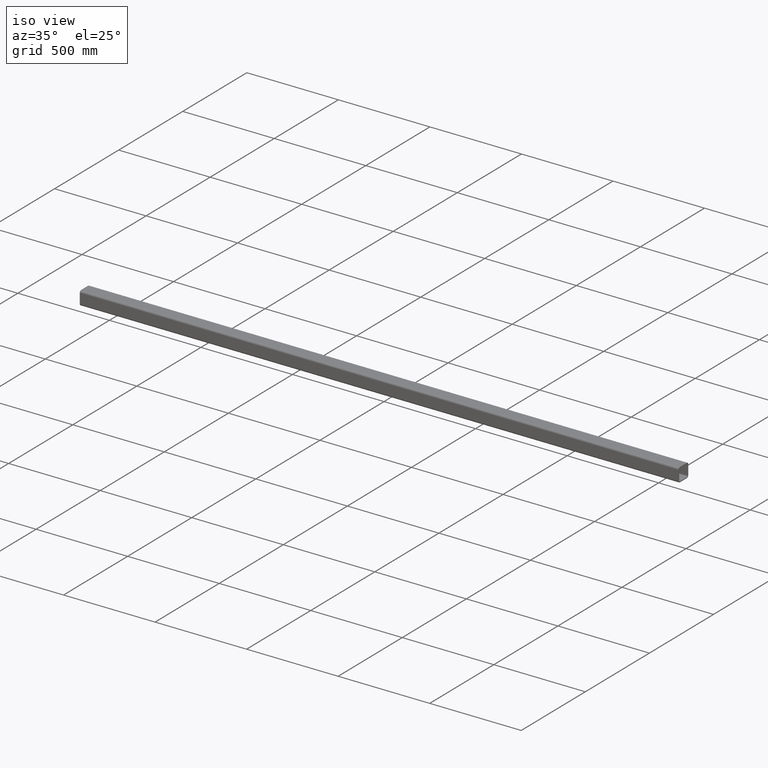
[diagram: clean part render]
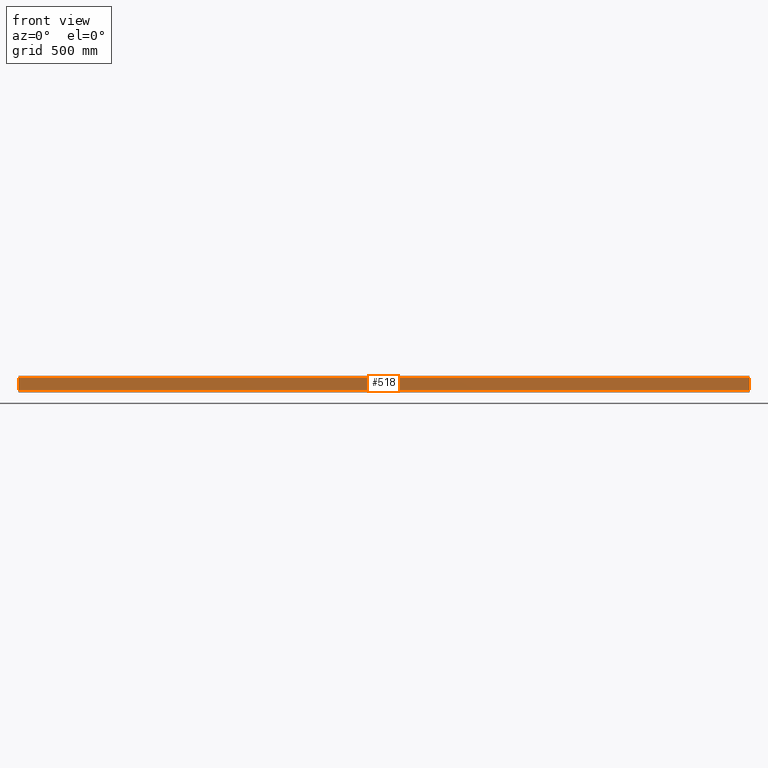
[diagram: tour spotlight — one face highlighted and labeled with its STEP entity id]
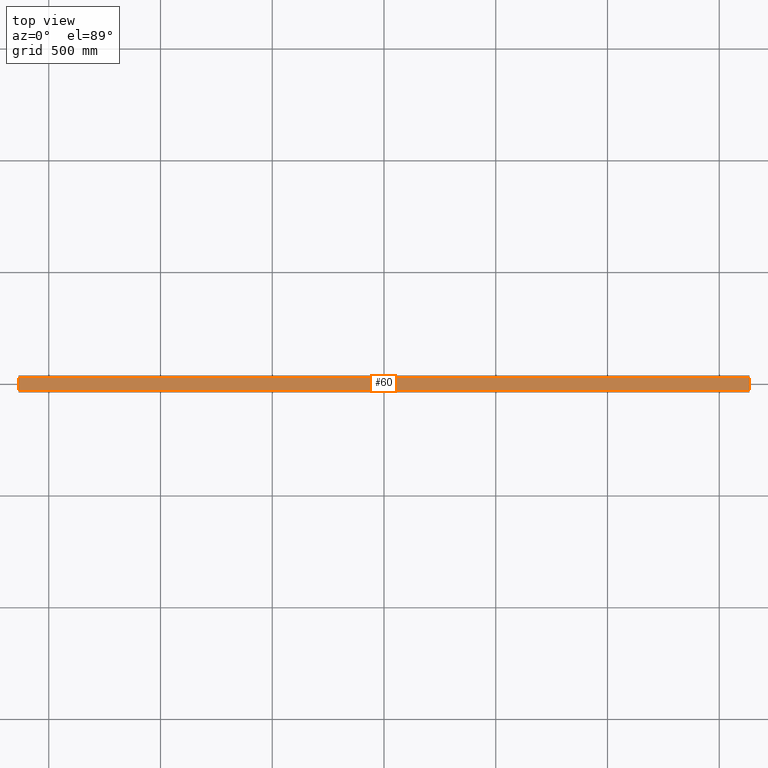
[diagram: tour spotlight — one face highlighted and labeled with its STEP entity id]
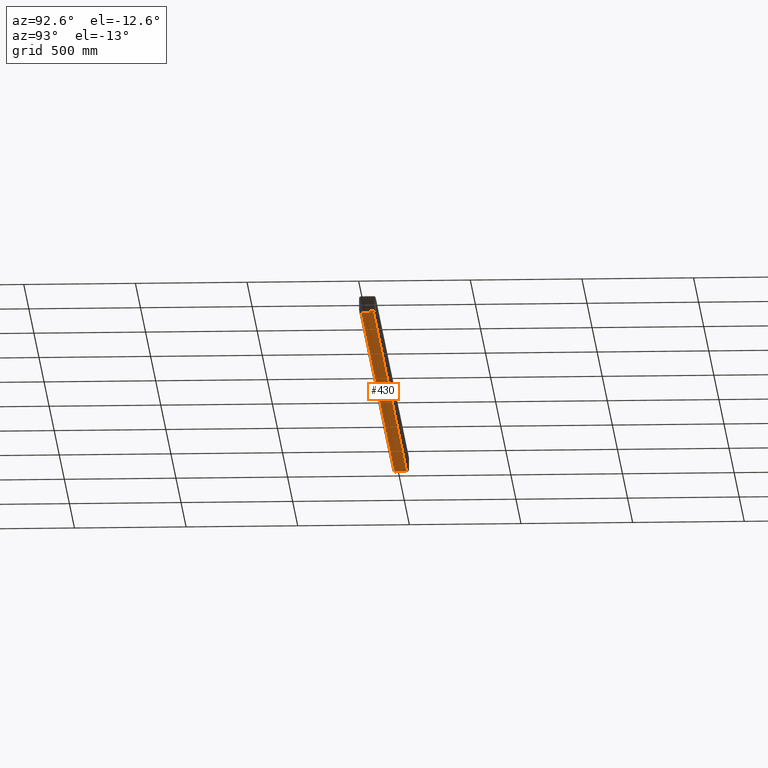
[diagram: tour spotlight — one face highlighted and labeled with its STEP entity id]
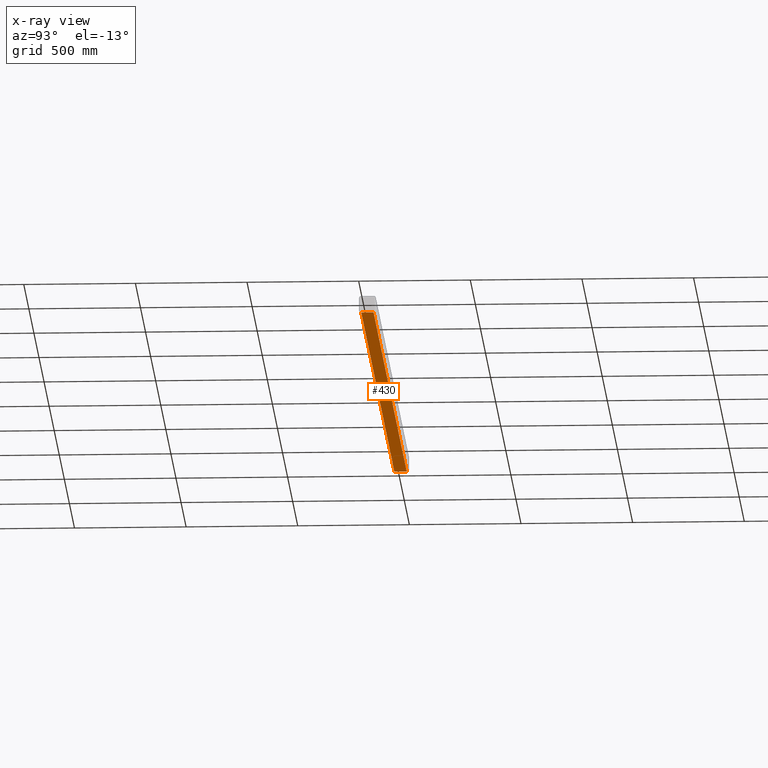
[diagram: x-ray of the same camera — body ghosted, this tour face saturated]
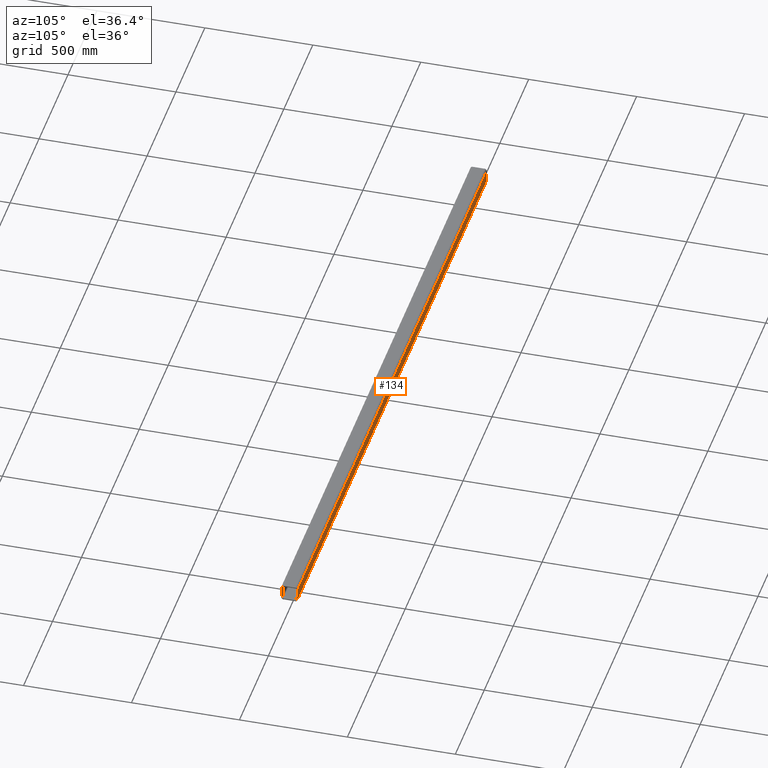
[diagram: tour spotlight — one face highlighted and labeled with its STEP entity id]
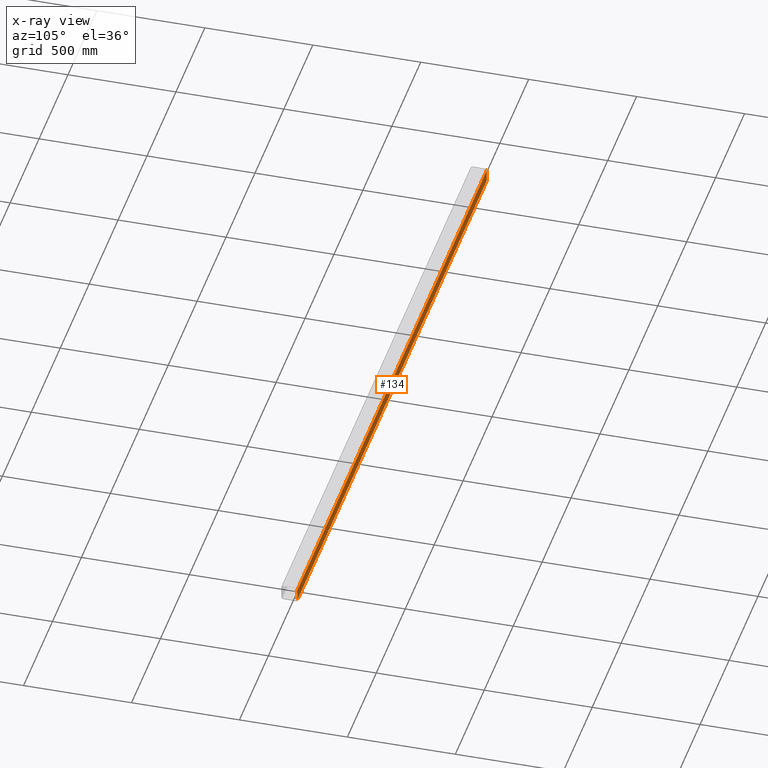
[diagram: x-ray of the same camera — body ghosted, this tour face saturated]
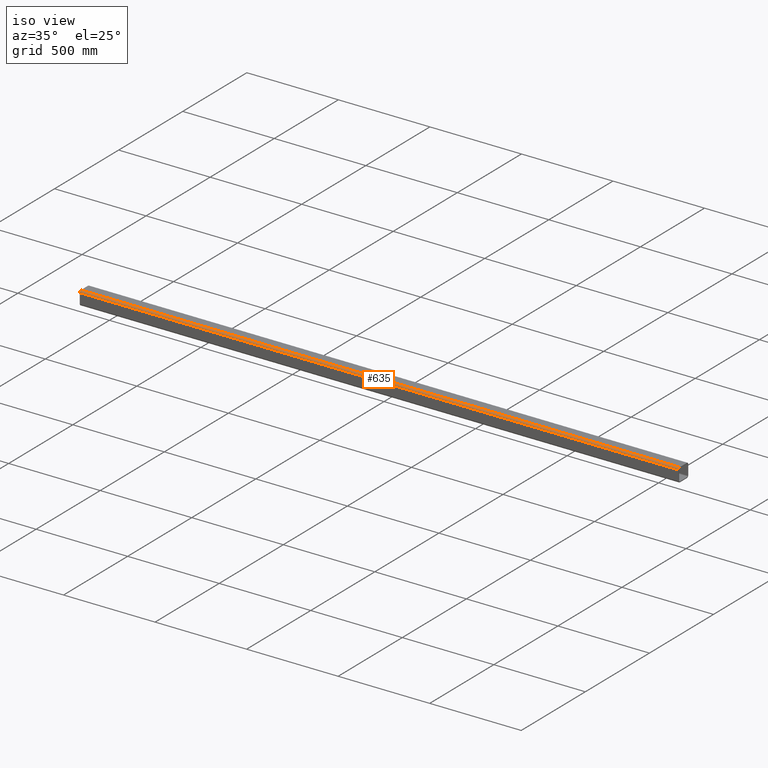
[diagram: tour spotlight — one face highlighted and labeled with its STEP entity id]
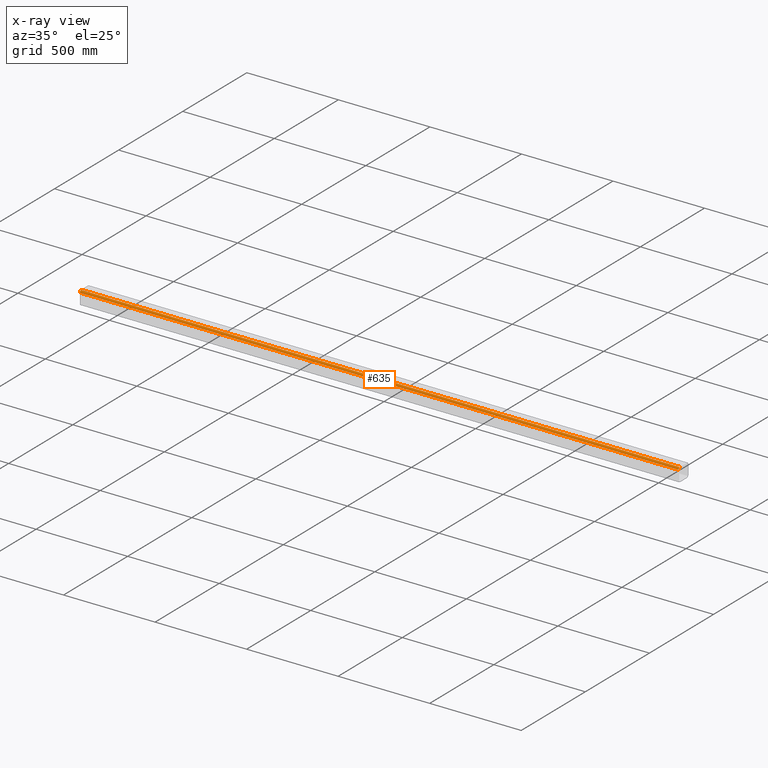
[diagram: x-ray of the same camera — body ghosted, this tour face saturated]
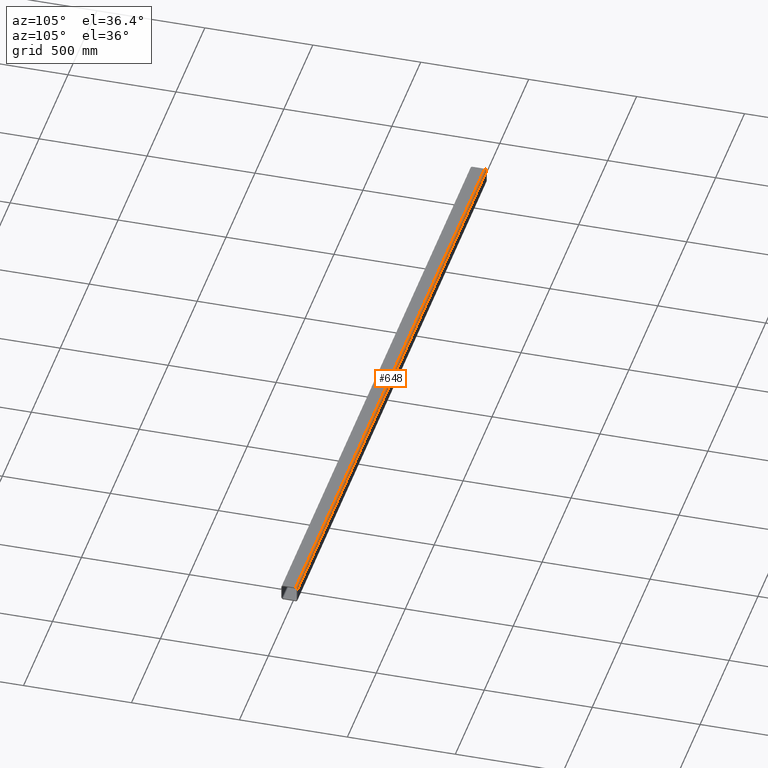
[diagram: tour spotlight — one face highlighted and labeled with its STEP entity id]
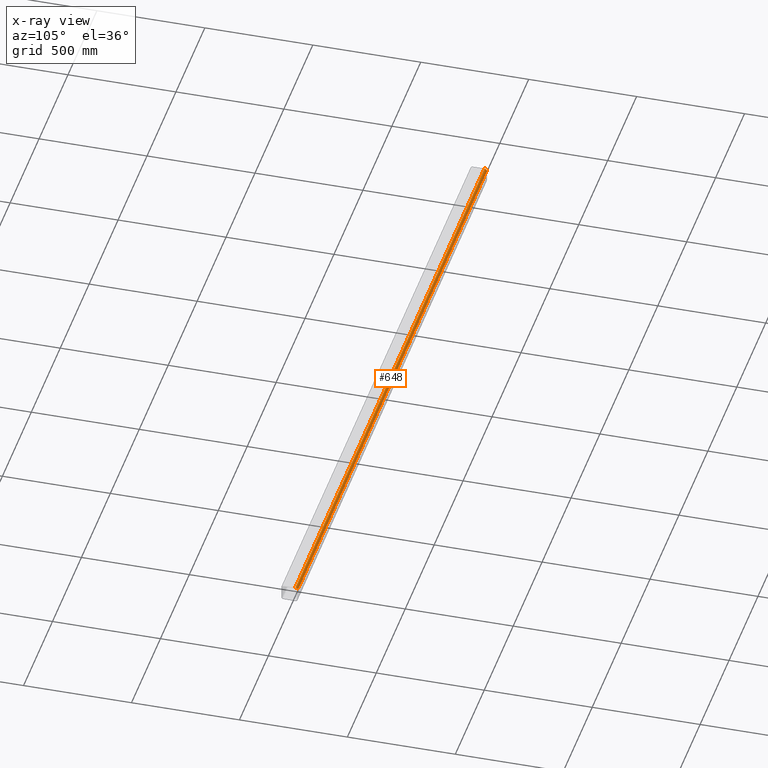
[diagram: x-ray of the same camera — body ghosted, this tour face saturated]
A machine part: a face-by-face anatomy tour. The part has 18 B-rep faces; the first image is the clean iso view, then the 6 largest visible faces are spotlighted one at a time (largest first), each with its STEP entity span.

Face 1 — front view, entity #518. In plain terms, the highlighted planar face has unit normal (-0, 1, 0).
Definition (entity closure, byte-faithful):
#1 = LINE ( 'NONE', #68, #85 ) ;
#54 = EDGE_CURVE ( 'NONE', #269, #253, #208, .T. ) ;
#62 = AXIS2_PLACEMENT_3D ( 'NONE', #446, #652, #112 ) ;
#64 = FACE_OUTER_BOUND ( 'NONE', #340, .T. ) ;
#68 = CARTESIAN_POINT ( 'NONE',  ( -1635.500000000000000, -37.50000000000039790, 27.49999999999987566 ) ) ;
#77 = ORIENTED_EDGE ( 'NONE', *, *, #595, .T. ) ;
#85 = VECTOR ( 'NONE', #566, 1000.000000000000000 ) ;
#102 = VECTOR ( 'NONE', #585, 1000.000000000000000 ) ;
#106 = VERTEX_POINT ( 'NONE', #513 ) ;
#112 = DIRECTION ( 'NONE',  ( -1.000000000000000000, -3.061616997868382648E-16, 0.000000000000000000 ) ) ;
#121 = CARTESIAN_POINT ( 'NONE',  ( -1635.500000000000000, -37.50000000000039790, -27.50000000000011724 ) ) ;
#154 = DIRECTION ( 'NONE',  ( 0.000000000000000000, 0.000000000000000000, 1.000000000000000000 ) ) ;
#157 = CARTESIAN_POINT ( 'NONE',  ( 1635.500000000000000, -37.49999999999940314, -27.50000000000011724 ) ) ;
#160 = CARTESIAN_POINT ( 'NONE',  ( -1635.500000000000000, -37.50000000000039790, -27.50000000000011724 ) ) ;
#166 = LINE ( 'NONE', #121, #102 ) ;
#208 = LINE ( 'NONE', #160, #438 ) ;
#253 = VERTEX_POINT ( 'NONE', #469 ) ;
#269 = VERTEX_POINT ( 'NONE', #621 ) ;
#320 = EDGE_CURVE ( 'NONE', #269, #552, #166, .T. ) ;
#340 = EDGE_LOOP ( 'NONE', ( #77, #351, #470, #514 ) ) ;
#351 = ORIENTED_EDGE ( 'NONE', *, *, #574, .F. ) ;
#356 = LINE ( 'NONE', #460, #584 ) ;
#438 = VECTOR ( 'NONE', #608, 1000.000000000000000 ) ;
#446 = CARTESIAN_POINT ( 'NONE',  ( -1635.500000000000000, -37.50000000000039790, -27.50000000000011724 ) ) ;
#448 = PLANE ( 'NONE',  #62 ) ;
#460 = CARTESIAN_POINT ( 'NONE',  ( 1635.500000000000000, -37.49999999999940314, -27.50000000000011724 ) ) ;
#469 = CARTESIAN_POINT ( 'NONE',  ( -1635.500000000000000, -37.50000000000039790, 27.49999999999987566 ) ) ;
#470 = ORIENTED_EDGE ( 'NONE', *, *, #54, .F. ) ;
#513 = CARTESIAN_POINT ( 'NONE',  ( 1635.500000000000000, -37.49999999999940314, 27.49999999999987566 ) ) ;
#514 = ORIENTED_EDGE ( 'NONE', *, *, #320, .T. ) ;
#518 = ADVANCED_FACE ( 'NONE', ( #64 ), #448, .F. ) ;
#552 = VERTEX_POINT ( 'NONE', #157 ) ;
#566 = DIRECTION ( 'NONE',  ( 1.000000000000000000, 3.061616997868382648E-16, -0.000000000000000000 ) ) ;
#574 = EDGE_CURVE ( 'NONE', #253, #106, #1, .T. ) ;
#584 = VECTOR ( 'NONE', #154, 1000.000000000000000 ) ;
#585 = DIRECTION ( 'NONE',  ( 1.000000000000000000, 3.061616997868382648E-16, -0.000000000000000000 ) ) ;
#595 = EDGE_CURVE ( 'NONE', #552, #106, #356, .T. ) ;
#608 = DIRECTION ( 'NONE',  ( 0.000000000000000000, 0.000000000000000000, 1.000000000000000000 ) ) ;
#621 = CARTESIAN_POINT ( 'NONE',  ( -1635.500000000000000, -37.50000000000039790, -27.50000000000011724 ) ) ;
#652 = DIRECTION ( 'NONE',  ( -3.061616997868382648E-16, 1.000000000000000000, 0.000000000000000000 ) ) ;

Face 2 — top view, entity #60. In plain terms, the highlighted planar face has unit normal (0, -0, -1).
Definition (entity closure, byte-faithful):
#12 = DIRECTION ( 'NONE',  ( -0.000000000000000000, 1.000000000000000000, -1.261617073437677506E-16 ) ) ;
#31 = ORIENTED_EDGE ( 'NONE', *, *, #449, .T. ) ;
#60 = ADVANCED_FACE ( 'NONE', ( #559 ), #158, .F. ) ;
#67 = VERTEX_POINT ( 'NONE', #165 ) ;
#80 = VERTEX_POINT ( 'NONE', #567 ) ;
#88 = EDGE_LOOP ( 'NONE', ( #31, #290, #186, #277 ) ) ;
#97 = DIRECTION ( 'NONE',  ( 1.000000000000000000, 3.061616997868382648E-16, -0.000000000000000000 ) ) ;
#128 = EDGE_CURVE ( 'NONE', #80, #348, #252, .T. ) ;
#131 = AXIS2_PLACEMENT_3D ( 'NONE', #611, #353, #396 ) ;
#158 = PLANE ( 'NONE',  #131 ) ;
#163 = LINE ( 'NONE', #352, #464 ) ;
#165 = CARTESIAN_POINT ( 'NONE',  ( 1635.500000000000000, 27.50000000000062528, 37.49999999999987921 ) ) ;
#186 = ORIENTED_EDGE ( 'NONE', *, *, #627, .F. ) ;
#252 = LINE ( 'NONE', #260, #419 ) ;
#260 = CARTESIAN_POINT ( 'NONE',  ( -1635.500000000000000, -27.50000000000039080, 37.49999999999987921 ) ) ;
#277 = ORIENTED_EDGE ( 'NONE', *, *, #128, .T. ) ;
#290 = ORIENTED_EDGE ( 'NONE', *, *, #393, .F. ) ;
#334 = CARTESIAN_POINT ( 'NONE',  ( -1635.500000000000000, 27.49999999999962341, 37.49999999999987921 ) ) ;
#348 = VERTEX_POINT ( 'NONE', #535 ) ;
#352 = CARTESIAN_POINT ( 'NONE',  ( -1635.500000000000000, 27.49999999999962341, 37.49999999999987921 ) ) ;
#353 = DIRECTION ( 'NONE',  ( 3.862588276837757567E-32, -1.261617073437677506E-16, -1.000000000000000000 ) ) ;
#366 = VECTOR ( 'NONE', #598, 1000.000000000000000 ) ;
#389 = LINE ( 'NONE', #541, #593 ) ;
#393 = EDGE_CURVE ( 'NONE', #458, #67, #389, .T. ) ;
#396 = DIRECTION ( 'NONE',  ( 0.000000000000000000, 1.000000000000000000, -1.261617073437677506E-16 ) ) ;
#419 = VECTOR ( 'NONE', #461, 1000.000000000000000 ) ;
#449 = EDGE_CURVE ( 'NONE', #348, #67, #483, .T. ) ;
#458 = VERTEX_POINT ( 'NONE', #334 ) ;
#461 = DIRECTION ( 'NONE',  ( 1.000000000000000000, 3.061616997868382648E-16, -0.000000000000000000 ) ) ;
#464 = VECTOR ( 'NONE', #12, 1000.000000000000000 ) ;
#483 = LINE ( 'NONE', #485, #366 ) ;
#485 = CARTESIAN_POINT ( 'NONE',  ( 1635.500000000000000, 27.50000000000062528, 37.49999999999987921 ) ) ;
#535 = CARTESIAN_POINT ( 'NONE',  ( 1635.500000000000000, -27.49999999999938893, 37.49999999999987921 ) ) ;
#541 = CARTESIAN_POINT ( 'NONE',  ( -1635.500000000000000, 27.49999999999962341, 37.49999999999987921 ) ) ;
#559 = FACE_OUTER_BOUND ( 'NONE', #88, .T. ) ;
#567 = CARTESIAN_POINT ( 'NONE',  ( -1635.500000000000000, -27.50000000000039080, 37.49999999999987921 ) ) ;
#593 = VECTOR ( 'NONE', #97, 1000.000000000000000 ) ;
#598 = DIRECTION ( 'NONE',  ( -0.000000000000000000, 1.000000000000000000, -1.261617073437677506E-16 ) ) ;
#611 = CARTESIAN_POINT ( 'NONE',  ( -1635.500000000000000, 27.49999999999962341, 37.49999999999987921 ) ) ;
#627 = EDGE_CURVE ( 'NONE', #80, #458, #163, .T. ) ;

Face 3 — auxiliary view, entity #430. An x-ray twin of the same camera follows (body ghosted, this face saturated) — the face is partly hidden behind the body. In plain terms, the highlighted planar face has unit normal (-0, 0, 1).
Definition (entity closure, byte-faithful):
#24 = VERTEX_POINT ( 'NONE', #242 ) ;
#25 = VECTOR ( 'NONE', #191, 1000.000000000000000 ) ;
#27 = CARTESIAN_POINT ( 'NONE',  ( 1635.500000000000000, 27.50000000000062528, -37.50000000000012790 ) ) ;
#39 = CARTESIAN_POINT ( 'NONE',  ( -1635.500000000000000, 27.49999999999962341, -37.50000000000012790 ) ) ;
#46 = CARTESIAN_POINT ( 'NONE',  ( -1635.500000000000000, 27.49999999999962341, -37.50000000000012790 ) ) ;
#82 = LINE ( 'NONE', #27, #228 ) ;
#99 = DIRECTION ( 'NONE',  ( -3.862588276837757567E-32, 1.261617073437677506E-16, 1.000000000000000000 ) ) ;
#115 = CARTESIAN_POINT ( 'NONE',  ( 1635.500000000000000, 27.50000000000062883, -37.50000000000011369 ) ) ;
#142 = LINE ( 'NONE', #339, #452 ) ;
#182 = PLANE ( 'NONE',  #624 ) ;
#191 = DIRECTION ( 'NONE',  ( 0.000000000000000000, -1.000000000000000000, 1.261617073437677506E-16 ) ) ;
#221 = EDGE_CURVE ( 'NONE', #517, #497, #82, .T. ) ;
#228 = VECTOR ( 'NONE', #527, 1000.000000000000000 ) ;
#236 = DIRECTION ( 'NONE',  ( 0.000000000000000000, -1.000000000000000000, 1.261617073437677506E-16 ) ) ;
#238 = EDGE_CURVE ( 'NONE', #24, #517, #321, .T. ) ;
#242 = CARTESIAN_POINT ( 'NONE',  ( -1635.500000000000000, 27.49999999999962697, -37.50000000000011369 ) ) ;
#321 = LINE ( 'NONE', #361, #645 ) ;
#331 = FACE_OUTER_BOUND ( 'NONE', #609, .T. ) ;
#339 = CARTESIAN_POINT ( 'NONE',  ( -1635.500000000000000, -27.50000000000039080, -37.50000000000012079 ) ) ;
#361 = CARTESIAN_POINT ( 'NONE',  ( -1635.500000000000000, 27.49999999999962697, -37.50000000000011369 ) ) ;
#367 = DIRECTION ( 'NONE',  ( 1.000000000000000000, 3.061616997868382648E-16, -0.000000000000000000 ) ) ;
#368 = ORIENTED_EDGE ( 'NONE', *, *, #373, .F. ) ;
#373 = EDGE_CURVE ( 'NONE', #24, #432, #596, .T. ) ;
#423 = EDGE_CURVE ( 'NONE', #432, #497, #142, .T. ) ;
#430 = ADVANCED_FACE ( 'NONE', ( #331 ), #182, .F. ) ;
#432 = VERTEX_POINT ( 'NONE', #439 ) ;
#439 = CARTESIAN_POINT ( 'NONE',  ( -1635.500000000000000, -27.50000000000039080, -37.50000000000012079 ) ) ;
#451 = ORIENTED_EDGE ( 'NONE', *, *, #238, .T. ) ;
#452 = VECTOR ( 'NONE', #546, 1000.000000000000000 ) ;
#497 = VERTEX_POINT ( 'NONE', #592 ) ;
#517 = VERTEX_POINT ( 'NONE', #115 ) ;
#527 = DIRECTION ( 'NONE',  ( 0.000000000000000000, -1.000000000000000000, 1.261617073437677506E-16 ) ) ;
#546 = DIRECTION ( 'NONE',  ( 1.000000000000000000, 3.061616997868382648E-16, -0.000000000000000000 ) ) ;
#571 = ORIENTED_EDGE ( 'NONE', *, *, #423, .F. ) ;
#582 = ORIENTED_EDGE ( 'NONE', *, *, #221, .T. ) ;
#592 = CARTESIAN_POINT ( 'NONE',  ( 1635.500000000000000, -27.49999999999938893, -37.50000000000012079 ) ) ;
#596 = LINE ( 'NONE', #39, #25 ) ;
#609 = EDGE_LOOP ( 'NONE', ( #582, #571, #368, #451 ) ) ;
#624 = AXIS2_PLACEMENT_3D ( 'NONE', #46, #99, #236 ) ;
#645 = VECTOR ( 'NONE', #367, 1000.000000000000000 ) ;

Face 4 — auxiliary view, entity #134. An x-ray twin of the same camera follows (body ghosted, this face saturated) — the face is partly hidden behind the body. In plain terms, the highlighted planar face has unit normal (0, -1, 0).
Definition (entity closure, byte-faithful):
#13 = CARTESIAN_POINT ( 'NONE',  ( -1635.500000000000000, 37.49999999999962341, -27.50000000000010303 ) ) ;
#37 = VECTOR ( 'NONE', #634, 1000.000000000000000 ) ;
#53 = VERTEX_POINT ( 'NONE', #263 ) ;
#57 = FACE_OUTER_BOUND ( 'NONE', #183, .T. ) ;
#61 = PLANE ( 'NONE',  #179 ) ;
#63 = VERTEX_POINT ( 'NONE', #556 ) ;
#134 = ADVANCED_FACE ( 'NONE', ( #57 ), #61, .F. ) ;
#156 = VERTEX_POINT ( 'NONE', #457 ) ;
#168 = CARTESIAN_POINT ( 'NONE',  ( -1635.500000000000000, 37.49999999999962341, -27.50000000000010303 ) ) ;
#179 = AXIS2_PLACEMENT_3D ( 'NONE', #13, #196, #453 ) ;
#183 = EDGE_LOOP ( 'NONE', ( #249, #258, #235, #326 ) ) ;
#188 = VECTOR ( 'NONE', #402, 1000.000000000000000 ) ;
#196 = DIRECTION ( 'NONE',  ( 3.061616997868382648E-16, -1.000000000000000000, 0.000000000000000000 ) ) ;
#197 = VECTOR ( 'NONE', #219, 1000.000000000000000 ) ;
#212 = DIRECTION ( 'NONE',  ( -0.000000000000000000, -0.000000000000000000, -1.000000000000000000 ) ) ;
#219 = DIRECTION ( 'NONE',  ( 1.000000000000000000, 3.061616997868382648E-16, -0.000000000000000000 ) ) ;
#234 = EDGE_CURVE ( 'NONE', #156, #422, #268, .T. ) ;
#235 = ORIENTED_EDGE ( 'NONE', *, *, #234, .F. ) ;
#249 = ORIENTED_EDGE ( 'NONE', *, *, #379, .T. ) ;
#250 = VECTOR ( 'NONE', #212, 1000.000000000000000 ) ;
#258 = ORIENTED_EDGE ( 'NONE', *, *, #281, .F. ) ;
#263 = CARTESIAN_POINT ( 'NONE',  ( 1635.500000000000000, 37.50000000000062528, -27.50000000000010303 ) ) ;
#268 = LINE ( 'NONE', #270, #250 ) ;
#270 = CARTESIAN_POINT ( 'NONE',  ( -1635.500000000000000, 37.49999999999962341, -27.50000000000010303 ) ) ;
#281 = EDGE_CURVE ( 'NONE', #422, #53, #411, .T. ) ;
#282 = CARTESIAN_POINT ( 'NONE',  ( -1635.500000000000000, 37.49999999999962341, -27.50000000000010303 ) ) ;
#301 = LINE ( 'NONE', #406, #188 ) ;
#326 = ORIENTED_EDGE ( 'NONE', *, *, #528, .T. ) ;
#379 = EDGE_CURVE ( 'NONE', #63, #53, #492, .T. ) ;
#387 = CARTESIAN_POINT ( 'NONE',  ( 1635.500000000000000, 37.50000000000062528, -27.50000000000010303 ) ) ;
#402 = DIRECTION ( 'NONE',  ( 1.000000000000000000, 3.061616997868382648E-16, -0.000000000000000000 ) ) ;
#406 = CARTESIAN_POINT ( 'NONE',  ( -1635.500000000000000, 37.49999999999962341, 27.49999999999986144 ) ) ;
#411 = LINE ( 'NONE', #168, #197 ) ;
#422 = VERTEX_POINT ( 'NONE', #282 ) ;
#453 = DIRECTION ( 'NONE',  ( 1.000000000000000000, 3.061616997868382648E-16, 0.000000000000000000 ) ) ;
#457 = CARTESIAN_POINT ( 'NONE',  ( -1635.500000000000000, 37.49999999999962341, 27.49999999999986144 ) ) ;
#492 = LINE ( 'NONE', #387, #37 ) ;
#528 = EDGE_CURVE ( 'NONE', #156, #63, #301, .T. ) ;
#556 = CARTESIAN_POINT ( 'NONE',  ( 1635.500000000000000, 37.50000000000062528, 27.49999999999986144 ) ) ;
#634 = DIRECTION ( 'NONE',  ( -0.000000000000000000, -0.000000000000000000, -1.000000000000000000 ) ) ;

Face 5 — iso view, entity #635. An x-ray twin of the same camera follows (body ghosted, this face saturated) — the face is partly hidden behind the body. In plain terms, the highlighted cylindrical surface (edge-blend (fillet) strip) has radius 10 mm, axis along (1, 0, -0).
Definition (entity closure, byte-faithful):
#1 = LINE ( 'NONE', #68, #85 ) ;
#9 = CARTESIAN_POINT ( 'NONE',  ( -1635.500000000000000, -27.50000000000039790, 27.49999999999987210 ) ) ;
#33 = DIRECTION ( 'NONE',  ( 0.000000000000000000, -1.000000000000000000, 0.000000000000000000 ) ) ;
#59 = FACE_OUTER_BOUND ( 'NONE', #547, .T. ) ;
#68 = CARTESIAN_POINT ( 'NONE',  ( -1635.500000000000000, -37.50000000000039790, 27.49999999999987566 ) ) ;
#80 = VERTEX_POINT ( 'NONE', #567 ) ;
#84 = ORIENTED_EDGE ( 'NONE', *, *, #480, .T. ) ;
#85 = VECTOR ( 'NONE', #566, 1000.000000000000000 ) ;
#106 = VERTEX_POINT ( 'NONE', #513 ) ;
#128 = EDGE_CURVE ( 'NONE', #80, #348, #252, .T. ) ;
#136 = AXIS2_PLACEMENT_3D ( 'NONE', #371, #428, #375 ) ;
#151 = CYLINDRICAL_SURFACE ( 'NONE', #292, 10.00000000000000888 ) ;
#206 = DIRECTION ( 'NONE',  ( 0.000000000000000000, 1.000000000000000000, 0.000000000000000000 ) ) ;
#207 = AXIS2_PLACEMENT_3D ( 'NONE', #241, #442, #33 ) ;
#220 = ORIENTED_EDGE ( 'NONE', *, *, #574, .T. ) ;
#241 = CARTESIAN_POINT ( 'NONE',  ( 1635.500000000000000, -27.49999999999939604, 27.49999999999987210 ) ) ;
#252 = LINE ( 'NONE', #260, #419 ) ;
#253 = VERTEX_POINT ( 'NONE', #469 ) ;
#260 = CARTESIAN_POINT ( 'NONE',  ( -1635.500000000000000, -27.50000000000039080, 37.49999999999987921 ) ) ;
#287 = EDGE_CURVE ( 'NONE', #253, #80, #643, .T. ) ;
#292 = AXIS2_PLACEMENT_3D ( 'NONE', #9, #297, #206 ) ;
#297 = DIRECTION ( 'NONE',  ( 1.000000000000000000, 3.061616997868382648E-16, -0.000000000000000000 ) ) ;
#348 = VERTEX_POINT ( 'NONE', #535 ) ;
#363 = ORIENTED_EDGE ( 'NONE', *, *, #287, .F. ) ;
#371 = CARTESIAN_POINT ( 'NONE',  ( -1635.500000000000000, -27.50000000000039790, 27.49999999999987210 ) ) ;
#375 = DIRECTION ( 'NONE',  ( 0.000000000000000000, -1.000000000000000000, 0.000000000000000000 ) ) ;
#419 = VECTOR ( 'NONE', #461, 1000.000000000000000 ) ;
#428 = DIRECTION ( 'NONE',  ( -1.000000000000000000, -3.061616997868382648E-16, 0.000000000000000000 ) ) ;
#442 = DIRECTION ( 'NONE',  ( -1.000000000000000000, -3.061616997868382648E-16, 0.000000000000000000 ) ) ;
#461 = DIRECTION ( 'NONE',  ( 1.000000000000000000, 3.061616997868382648E-16, -0.000000000000000000 ) ) ;
#469 = CARTESIAN_POINT ( 'NONE',  ( -1635.500000000000000, -37.50000000000039790, 27.49999999999987566 ) ) ;
#480 = EDGE_CURVE ( 'NONE', #106, #348, #542, .T. ) ;
#513 = CARTESIAN_POINT ( 'NONE',  ( 1635.500000000000000, -37.49999999999940314, 27.49999999999987566 ) ) ;
#522 = ORIENTED_EDGE ( 'NONE', *, *, #128, .F. ) ;
#535 = CARTESIAN_POINT ( 'NONE',  ( 1635.500000000000000, -27.49999999999938893, 37.49999999999987921 ) ) ;
#542 = CIRCLE ( 'NONE', #207, 10.00000000000001243 ) ;
#547 = EDGE_LOOP ( 'NONE', ( #84, #522, #363, #220 ) ) ;
#566 = DIRECTION ( 'NONE',  ( 1.000000000000000000, 3.061616997868382648E-16, -0.000000000000000000 ) ) ;
#567 = CARTESIAN_POINT ( 'NONE',  ( -1635.500000000000000, -27.50000000000039080, 37.49999999999987921 ) ) ;
#574 = EDGE_CURVE ( 'NONE', #253, #106, #1, .T. ) ;
#635 = ADVANCED_FACE ( 'NONE', ( #59 ), #151, .T. ) ;
#643 = CIRCLE ( 'NONE', #136, 10.00000000000000888 ) ;

Face 6 — auxiliary view, entity #648. An x-ray twin of the same camera follows (body ghosted, this face saturated) — the face is partly hidden behind the body. In plain terms, the highlighted cylindrical surface (edge-blend (fillet) strip) has radius 10 mm, axis along (1, 0, -0).
Definition (entity closure, byte-faithful):
#11 = AXIS2_PLACEMENT_3D ( 'NONE', #408, #307, #349 ) ;
#63 = VERTEX_POINT ( 'NONE', #556 ) ;
#67 = VERTEX_POINT ( 'NONE', #165 ) ;
#78 = EDGE_CURVE ( 'NONE', #67, #63, #111, .T. ) ;
#97 = DIRECTION ( 'NONE',  ( 1.000000000000000000, 3.061616997868382648E-16, -0.000000000000000000 ) ) ;
#111 = CIRCLE ( 'NONE', #11, 10.00000000000000533 ) ;
#118 = DIRECTION ( 'NONE',  ( 0.000000000000000000, 1.000000000000000000, 0.000000000000000000 ) ) ;
#139 = CIRCLE ( 'NONE', #649, 10.00000000000000888 ) ;
#156 = VERTEX_POINT ( 'NONE', #457 ) ;
#165 = CARTESIAN_POINT ( 'NONE',  ( 1635.500000000000000, 27.50000000000062528, 37.49999999999987921 ) ) ;
#181 = AXIS2_PLACEMENT_3D ( 'NONE', #620, #374, #118 ) ;
#188 = VECTOR ( 'NONE', #402, 1000.000000000000000 ) ;
#203 = DIRECTION ( 'NONE',  ( -1.000000000000000000, -3.061616997868382648E-16, 0.000000000000000000 ) ) ;
#293 = DIRECTION ( 'NONE',  ( 0.000000000000000000, 1.000000000000000000, 0.000000000000000000 ) ) ;
#301 = LINE ( 'NONE', #406, #188 ) ;
#307 = DIRECTION ( 'NONE',  ( -1.000000000000000000, -3.061616997868382648E-16, 0.000000000000000000 ) ) ;
#334 = CARTESIAN_POINT ( 'NONE',  ( -1635.500000000000000, 27.49999999999962341, 37.49999999999987921 ) ) ;
#349 = DIRECTION ( 'NONE',  ( 0.000000000000000000, 1.000000000000000000, 0.000000000000000000 ) ) ;
#374 = DIRECTION ( 'NONE',  ( 1.000000000000000000, 3.061616997868382648E-16, -0.000000000000000000 ) ) ;
#389 = LINE ( 'NONE', #541, #593 ) ;
#390 = EDGE_LOOP ( 'NONE', ( #455, #579, #529, #501 ) ) ;
#393 = EDGE_CURVE ( 'NONE', #458, #67, #389, .T. ) ;
#402 = DIRECTION ( 'NONE',  ( 1.000000000000000000, 3.061616997868382648E-16, -0.000000000000000000 ) ) ;
#406 = CARTESIAN_POINT ( 'NONE',  ( -1635.500000000000000, 37.49999999999962341, 27.49999999999986144 ) ) ;
#408 = CARTESIAN_POINT ( 'NONE',  ( 1635.500000000000000, 27.50000000000062528, 27.49999999999986144 ) ) ;
#410 = CYLINDRICAL_SURFACE ( 'NONE', #181, 10.00000000000000888 ) ;
#455 = ORIENTED_EDGE ( 'NONE', *, *, #78, .T. ) ;
#457 = CARTESIAN_POINT ( 'NONE',  ( -1635.500000000000000, 37.49999999999962341, 27.49999999999986144 ) ) ;
#458 = VERTEX_POINT ( 'NONE', #334 ) ;
#501 = ORIENTED_EDGE ( 'NONE', *, *, #393, .T. ) ;
#503 = FACE_OUTER_BOUND ( 'NONE', #390, .T. ) ;
#528 = EDGE_CURVE ( 'NONE', #156, #63, #301, .T. ) ;
#529 = ORIENTED_EDGE ( 'NONE', *, *, #639, .F. ) ;
#541 = CARTESIAN_POINT ( 'NONE',  ( -1635.500000000000000, 27.49999999999962341, 37.49999999999987921 ) ) ;
#556 = CARTESIAN_POINT ( 'NONE',  ( 1635.500000000000000, 37.50000000000062528, 27.49999999999986144 ) ) ;
#579 = ORIENTED_EDGE ( 'NONE', *, *, #528, .F. ) ;
#593 = VECTOR ( 'NONE', #97, 1000.000000000000000 ) ;
#607 = CARTESIAN_POINT ( 'NONE',  ( -1635.500000000000000, 27.49999999999962341, 27.49999999999986144 ) ) ;
#620 = CARTESIAN_POINT ( 'NONE',  ( -1635.500000000000000, 27.49999999999962341, 27.49999999999986144 ) ) ;
#639 = EDGE_CURVE ( 'NONE', #458, #156, #139, .T. ) ;
#648 = ADVANCED_FACE ( 'NONE', ( #503 ), #410, .T. ) ;
#649 = AXIS2_PLACEMENT_3D ( 'NONE', #607, #203, #293 ) ;